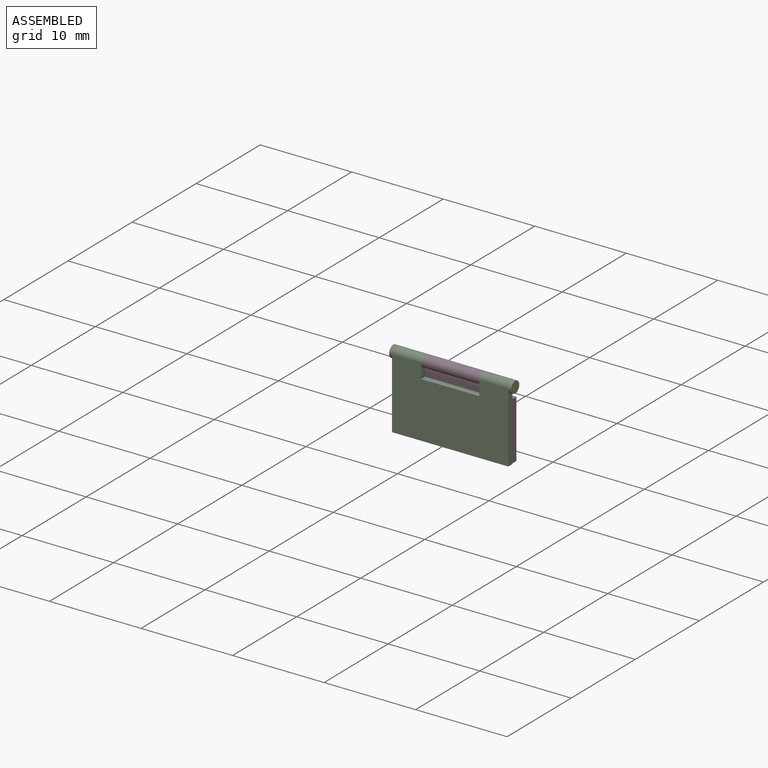
[diagram: assembled view]
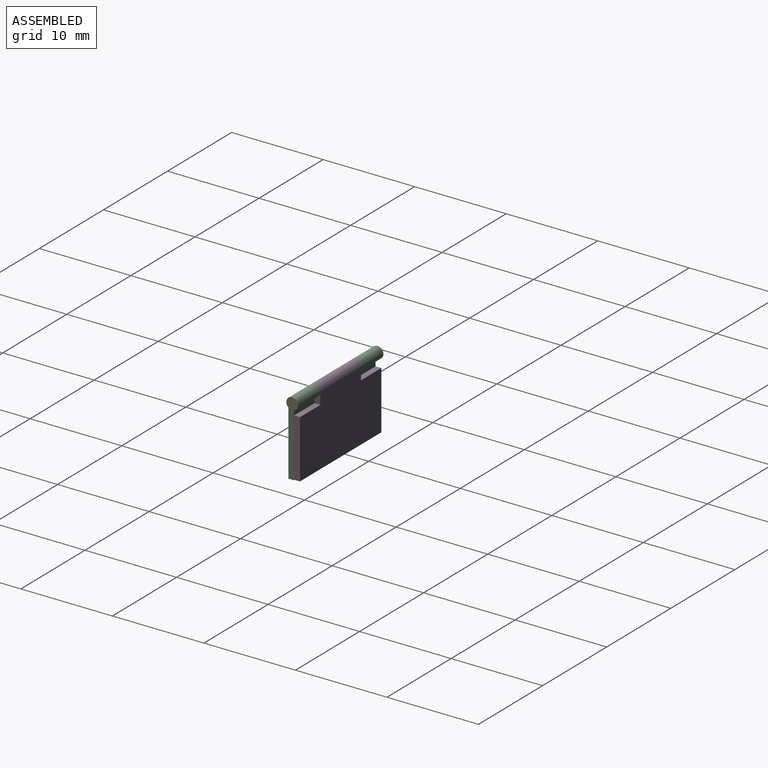
[diagram: assembled view, second angle]
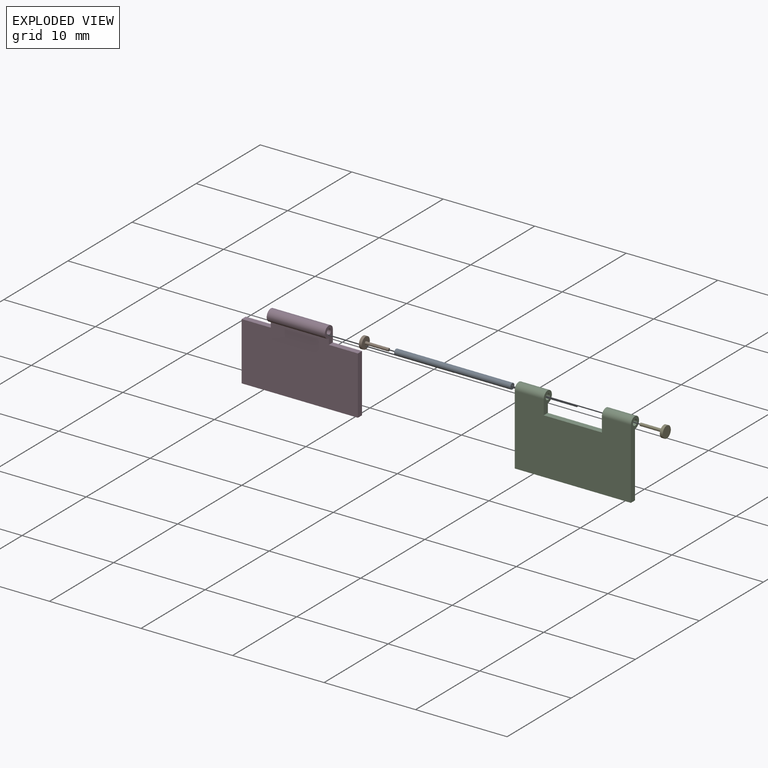
[diagram: exploded view]
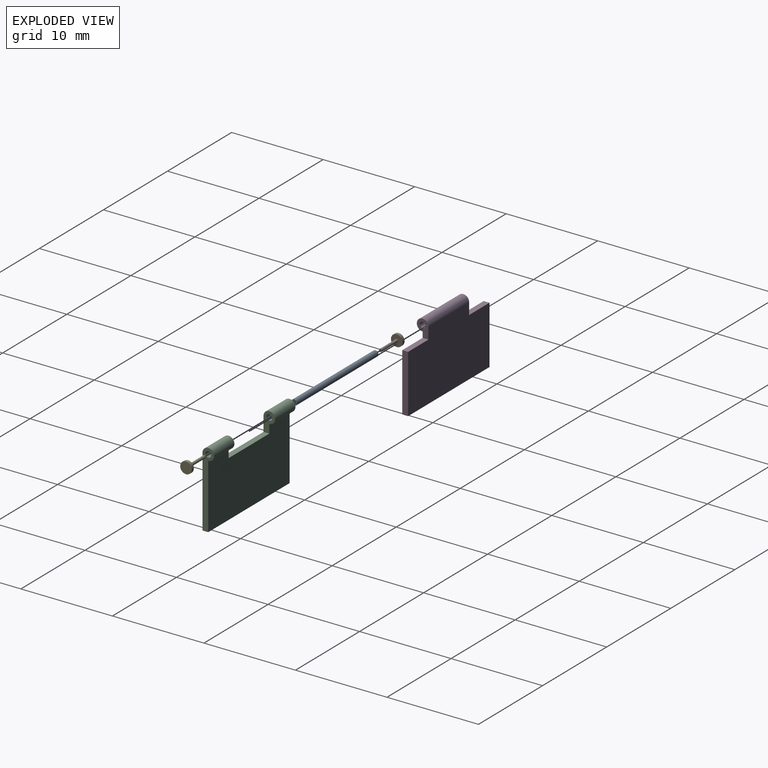
[diagram: exploded view, second angle]
ASSEMBLY  parts=5 mates=8
PART A: 7 faces, bbox 0.6x12.7x0.6 mm
  f0: cylinder r=0.32mm len=12.7mm, axis (0,1,0), area 25.3mm2, adj f1,f2
  f1: plane 0.64x0.64mm, normal (0,-1,0), area 0.2mm2, adj f0,f3
  f2: plane 0.64x0.64mm, normal (0,1,0), area 0.2mm2, adj f0,f5
  f3: cylinder r=0.16mm len=2.54mm, axis (0,-1,0), area 2.5mm2, adj f1,f4
  f4: plane 0.32x0.32mm, normal (0,-1,0), area 0.1mm2, adj f3
  f5: cylinder r=0.16mm len=2.54mm, axis (0,1,0), area 2.5mm2, adj f2,f6
  f6: plane 0.32x0.32mm, normal (0,1,0), area 0.1mm2, adj f5
PART B: 5 faces, bbox 1.3x2.9x1.3 mm
  f0: cylinder r=0.64mm len=1.27mm, axis (0,1,0), area 1.3mm2, adj f1,f3
  f1: plane 1.27x1.27mm, normal (0,-1,0), area 1.3mm2, adj f0
  f2: cylinder r=0.16mm len=2.54mm, axis (0,1,0), area 2.5mm2, adj f3,f4
  f3: plane 1.27x1.27mm, normal (0,1,0), area 1.2mm2, adj f0,f2
  f4: plane 0.32x0.32mm, normal (0,1,0), area 0.1mm2, adj f2
PART C: 12 faces, bbox 12.7x1.3x8.3 mm
  f0: plane 8.32x1.27mm, normal (-1,0,0), area 5.5mm2, adj f1,f6,f8,f10,f11
  f1: plane 12.7x7.68mm, normal (0,1,0), area 87.5mm2, adj f0,f2,f3,f4,f5,f7,f8,f11
  f2: plane 8.32x1.27mm, normal (1,0,0), area 5.5mm2, adj f1,f6,f7,f9,f11
  f3: plane 2.22x1.27mm, normal (1,0,0), area 1.6mm2, adj f1,f5,f6,f8,f10
  f4: plane 2.22x1.27mm, normal (-1,0,0), area 1.6mm2, adj f1,f5,f6,f7,f9
  f5: plane 6.35x0.64mm, normal (0,0,1), area 4mm2, adj f1,f3,f4,f6
  f6: plane 12.7x7.05mm, normal (0,-1,0), area 83.5mm2, adj f0,f2,f3,f4,f5,f7,f8,f11
  f7: cylinder r=0.64mm len=3.18mm, axis (-1,0,0), area 9.5mm2, adj f1,f2,f4,f6
  f8: cylinder r=0.64mm len=3.18mm, axis (-1,0,0), area 9.5mm2, adj f0,f1,f3,f6
  f9: cylinder r=0.32mm len=3.18mm, axis (-1,0,0), area 6.3mm2, adj f2,f4
  f10: cylinder r=0.32mm len=3.18mm, axis (-1,0,0), area 6.3mm2, adj f0,f3
  f11: plane 12.7x0.64mm, normal (0,0,-1), area 8.1mm2, adj f0,f1,f2,f6
PART D: 11 faces, bbox 12.7x1.3x8.3 mm
  f0: plane 12.7x7.62mm, normal (0,-1,0), area 88.7mm2, adj f1,f3,f4,f5,f6,f7,f8,f10
  f1: plane 6.35x0.64mm, normal (-1,0,0), area 4mm2, adj f0,f2,f7,f10
  f2: plane 12.7x6.99mm, normal (0,1,0), area 84.7mm2, adj f1,f3,f4,f5,f6,f7,f8,f10
  f3: plane 1.91x1.27mm, normal (1,0,0), area 1.4mm2, adj f0,f2,f5,f8,f9
  f4: plane 1.91x1.27mm, normal (-1,0,0), area 1.4mm2, adj f0,f2,f7,f8,f9
  f5: plane 3.18x0.64mm, normal (0,0,1), area 2mm2, adj f0,f2,f3,f6
  f6: plane 6.35x0.64mm, normal (1,0,0), area 4mm2, adj f0,f2,f5,f10
  f7: plane 3.18x0.64mm, normal (0,0,1), area 2mm2, adj f0,f1,f2,f4
  f8: cylinder r=0.64mm len=6.35mm, axis (-1,0,0), area 19mm2, adj f0,f2,f3,f4
  f9: cylinder r=0.32mm len=6.35mm, axis (-1,0,0), area 12.7mm2, adj f3,f4
  f10: plane 12.7x0.64mm, normal (0,0,-1), area 8.1mm2, adj f0,f1,f2,f6
PART E: 5 faces, bbox 1.3x2.9x1.3 mm
  f0: cylinder r=0.64mm len=1.27mm, axis (0,1,0), area 1.3mm2, adj f1,f3
  f1: plane 1.27x1.27mm, normal (0,1,0), area 1.3mm2, adj f0
  f2: cylinder r=0.16mm len=2.54mm, axis (0,-1,0), area 2.5mm2, adj f3,f4
  f3: plane 1.27x1.27mm, normal (0,-1,0), area 1.2mm2, adj f0,f2
  f4: plane 0.32x0.32mm, normal (0,-1,0), area 0.1mm2, adj f2
PLACE A rot(axis=(0,0,-1),90deg) t=(-2.44,-2.86,3.77)mm
PLACE B rot(axis=(0,0,-1),90deg) t=(-12.6,-2.86,3.77)mm
PLACE C rot(axis=(0,0,1),180deg) t=(-2.44,-3.49,-7.98)mm
PLACE D rot(axis=(0,0,1),180deg) t=(-2.44,-3.49,-7.66)mm
PLACE E rot(axis=(0,0,-1),90deg) t=(-2.12,-2.86,3.77)mm
MATE parallel D.f8 <-> C.f7  axis (1,0,0) through (-5.62,-2.86,3.77)mm
MATE parallel A.f0 <-> C.f7  axis (-1,0,0) through (-15.14,-2.86,3.77)mm
MATE fastened B.f2 <-> A.f3  axis (1,0,0) through (-12.6,-2.86,3.77)mm
MATE fastened D.f8 <-> C.f7  axis (1,0,0) through (-5.62,-2.86,3.77)mm
MATE fastened C.f7 <-> A.f0  axis (-1,0,0) through (-15.14,-2.86,3.77)mm
MATE fastened E.f2 <-> A.f3  axis (-1,0,0) through (-4.98,-2.86,3.77)mm
MATE parallel B.f2 <-> A.f3  axis (1,0,0) through (-12.6,-2.86,3.77)mm
MATE parallel E.f2 <-> A.f3  axis (-1,0,0) through (-4.98,-2.86,3.77)mm
